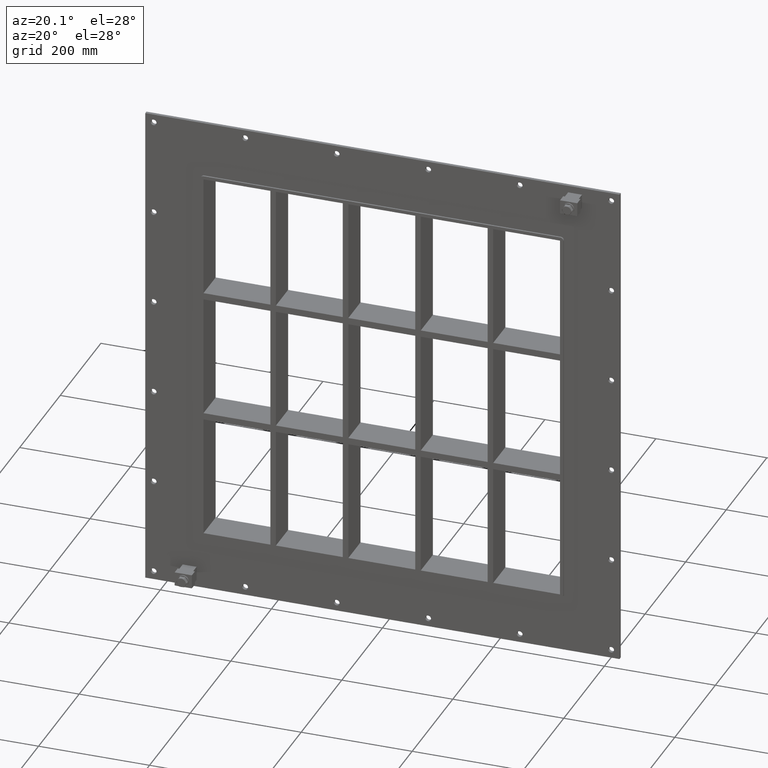
[diagram: clean part render]
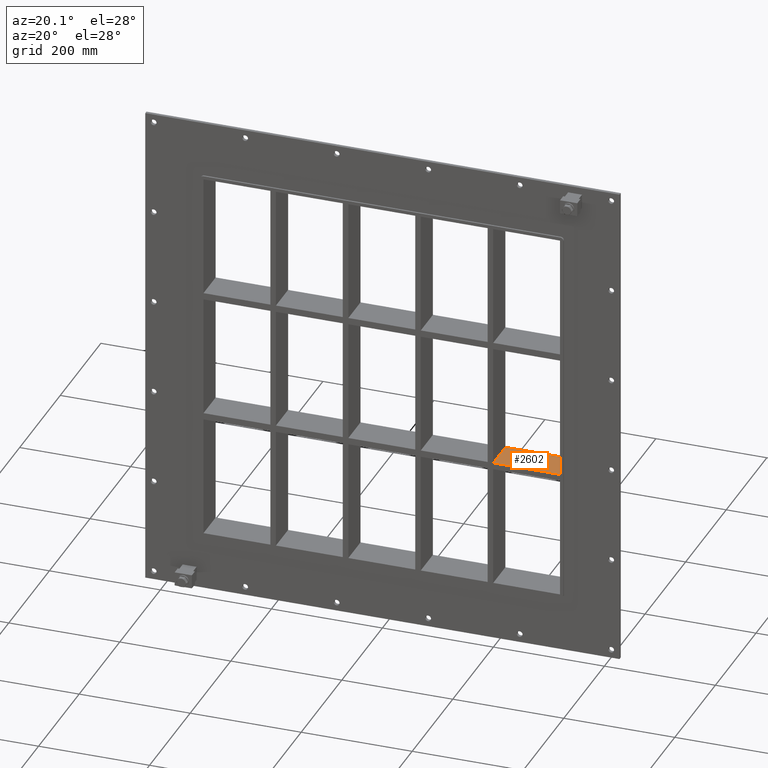
[diagram: same view with one face highlighted and labeled with its STEP entity id]
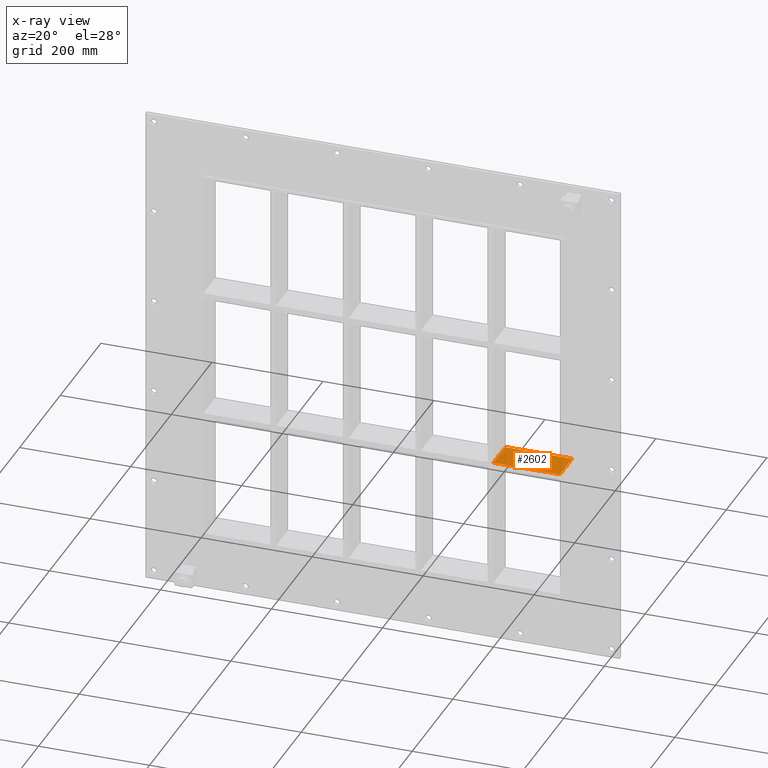
[diagram: x-ray of the same camera — body ghosted, the highlighted face saturated]
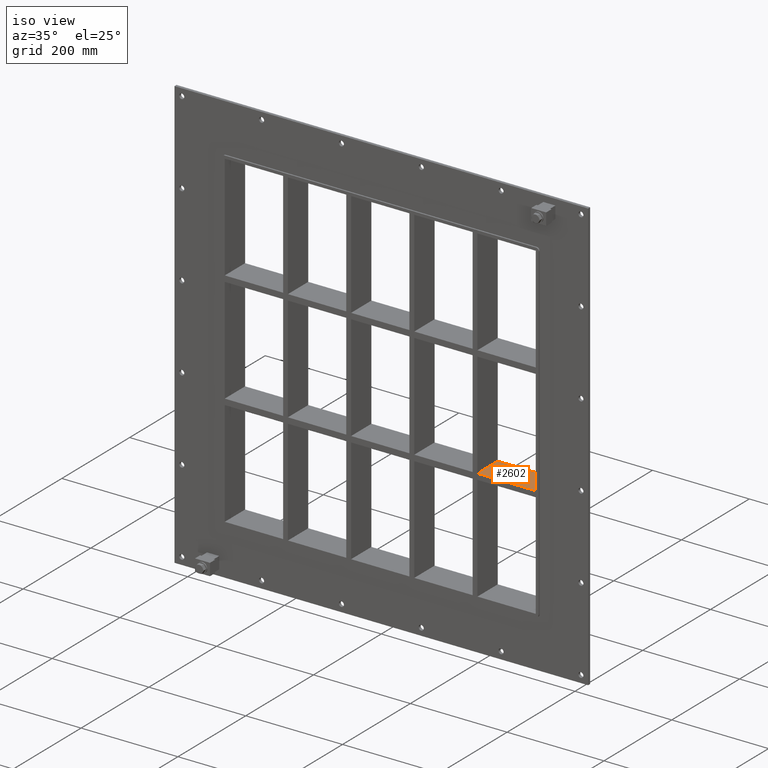
[diagram: same view with one face highlighted and labeled with its STEP entity id]
A machine part, auxiliary view. The second image highlights one B-rep face of the part: STEP entity #2602.
The next image is the same camera in x-ray: the body ghosted, the highlighted face saturated — about 0% of this face is hidden behind the body in this view.
A second angle (iso view) of the same face is appended — the face is thin or edge-on in the first view.
In plain terms, the highlighted planar face has unit normal (0, 0, 1).
Its self-contained STEP definition (entity closure, byte-faithful):
#1065=CARTESIAN_POINT('',(321.24999999999915,57.0,-109.00000000000091));
#1066=VERTEX_POINT('',#1065);
#1073=CARTESIAN_POINT('',(321.24999999999915,-3.0,-109.00000000000091));
#1074=VERTEX_POINT('',#1073);
#1075=CARTESIAN_POINT('',(321.25,57.000000000000007,-109.00000000000091));
#1076=DIRECTION('',(0.0,-1.0,0.0));
#1077=VECTOR('',#1076,60.000000000000007);
#1078=LINE('',#1075,#1077);
#1079=EDGE_CURVE('',#1066,#1074,#1078,.T.);
#1538=CARTESIAN_POINT('',(200.74999999999278,57.0,-109.00000000000091));
#1539=VERTEX_POINT('',#1538);
#1546=CARTESIAN_POINT('',(200.74999999999284,57.0,-109.00000000000091));
#1547=DIRECTION('',(1.0,0.0,0.0));
#1548=VECTOR('',#1547,120.50000000000637);
#1549=LINE('',#1546,#1548);
#1550=EDGE_CURVE('',#1539,#1066,#1549,.T.);
#1873=CARTESIAN_POINT('',(200.74999999999278,-3.0,-109.00000000000091));
#1874=VERTEX_POINT('',#1873);
#1881=CARTESIAN_POINT('',(200.74999999999278,57.0,-109.00000000000091));
#1882=DIRECTION('',(0.0,-1.0,0.0));
#1883=VECTOR('',#1882,60.0);
#1884=LINE('',#1881,#1883);
#1885=EDGE_CURVE('',#1539,#1874,#1884,.T.);
#2311=CARTESIAN_POINT('',(200.74999999999284,-3.0,-109.00000000000091));
#2312=DIRECTION('',(1.0,0.0,0.0));
#2313=VECTOR('',#2312,120.50000000000637);
#2314=LINE('',#2311,#2313);
#2315=EDGE_CURVE('',#1874,#1074,#2314,.T.);
#2591=CARTESIAN_POINT('',(-321.24999999999727,-3.0,-109.00000000000091));
#2592=DIRECTION('',(0.0,0.0,1.0));
#2593=DIRECTION('',(1.0,0.0,0.0));
#2594=AXIS2_PLACEMENT_3D('',#2591,#2592,#2593);
#2595=PLANE('',#2594);
#2596=ORIENTED_EDGE('',*,*,#1885,.T.);
#2597=ORIENTED_EDGE('',*,*,#2315,.T.);
#2598=ORIENTED_EDGE('',*,*,#1079,.F.);
#2599=ORIENTED_EDGE('',*,*,#1550,.F.);
#2600=EDGE_LOOP('',(#2596,#2597,#2598,#2599));
#2601=FACE_OUTER_BOUND('',#2600,.T.);
#2602=ADVANCED_FACE('',(#2601),#2595,.T.);